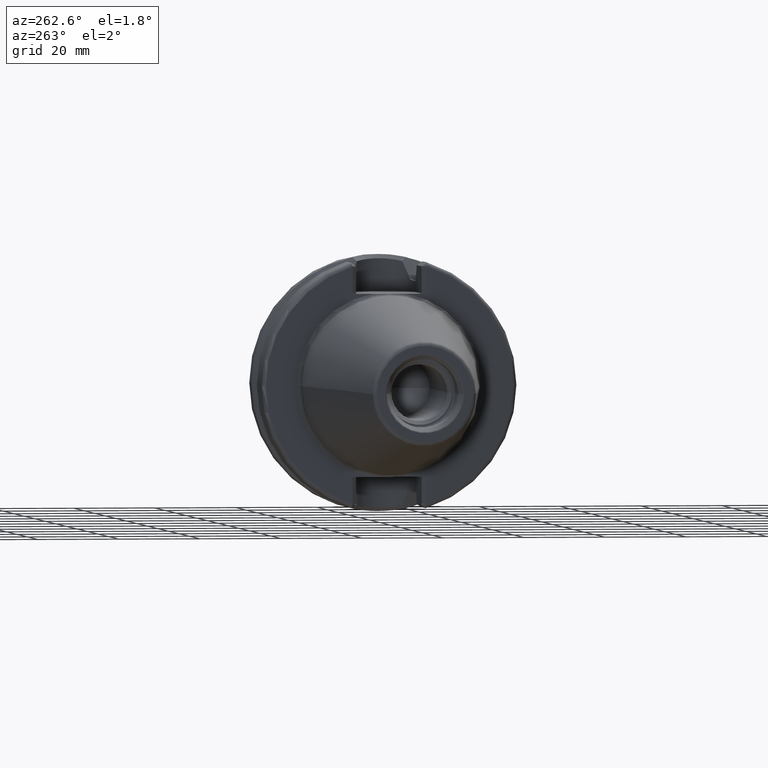
[diagram: clean part render]
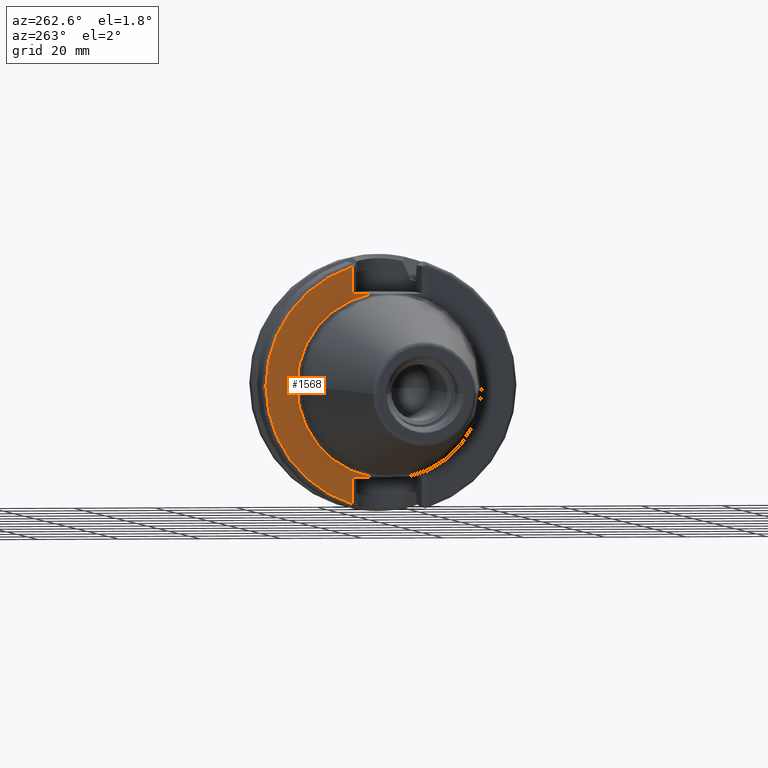
[diagram: same view with one face highlighted and labeled with its STEP entity id]
A machine part, auxiliary view. The second image highlights one B-rep face of the part: STEP entity #1568.
In plain terms, the highlighted planar face has unit normal (1, 0, 0).
Its self-contained STEP definition (entity closure, byte-faithful):
#96=CARTESIAN_POINT('',(2.E0,0.E0,0.E0));
#97=DIRECTION('',(-1.E0,0.E0,0.E0));
#98=DIRECTION('',(0.E0,1.E0,0.E0));
#99=AXIS2_PLACEMENT_3D('',#96,#97,#98);
#127=DIRECTION('',(2.137863157138E-6,2.138092596513E-6,9.999999999954E-1));
#128=VECTOR('',#127,6.649288203884E0);
#129=CARTESIAN_POINT('',(1.999985784732E0,9.094985783206E0,-2.909928820385E1));
#130=LINE('',#129,#128);
#131=DIRECTION('',(-4.462834027332E-6,-4.463945839096E-6,9.999999999801E-1));
#132=VECTOR('',#131,6.649296399125E0);
#133=CARTESIAN_POINT('',(2.E0,9.095E0,2.245E1));
#134=LINE('',#133,#132);
#592=CARTESIAN_POINT('',(2.E0,0.E0,0.E0));
#593=DIRECTION('',(-1.E0,0.E0,0.E0));
#594=DIRECTION('',(0.E0,2.983190614061E-1,9.544662055839E-1));
#595=AXIS2_PLACEMENT_3D('',#592,#593,#594);
#688=DIRECTION('',(0.E0,1.E0,0.E0));
#689=VECTOR('',#688,4.706022328605E0);
#690=CARTESIAN_POINT('',(2.E0,4.388977671395E0,2.245E1));
#691=LINE('',#690,#689);
#709=CARTESIAN_POINT('',(2.E0,0.E0,0.E0));
#710=DIRECTION('',(1.E0,0.E0,0.E0));
#711=DIRECTION('',(0.E0,1.E0,0.E0));
#712=AXIS2_PLACEMENT_3D('',#709,#710,#711);
#746=DIRECTION('',(0.E0,-1.E0,0.E0));
#747=VECTOR('',#746,4.706022328605E0);
#748=CARTESIAN_POINT('',(2.E0,9.095E0,-2.245E1));
#749=LINE('',#748,#747);
#1224=CARTESIAN_POINT('',(2.E0,2.2875E1,0.E0));
#1226=VERTEX_POINT('',#1224);
#1294=CARTESIAN_POINT('',(2.E0,4.388977671395E0,2.245E1));
#1295=VERTEX_POINT('',#1294);
#1302=CARTESIAN_POINT('',(2.E0,4.388977671395E0,-2.245E1));
#1303=VERTEX_POINT('',#1302);
#1340=CARTESIAN_POINT('',(2.E0,9.095027762300E0,2.909928051090E1));
#1342=VERTEX_POINT('',#1340);
#1344=CARTESIAN_POINT('',(2.E0,9.095E0,2.245E1));
#1345=VERTEX_POINT('',#1344);
#1354=CARTESIAN_POINT('',(1.999985784732E0,9.094985783206E0,-2.909928820385E1));
#1355=CARTESIAN_POINT('',(2.E0,9.095E0,-2.245E1));
#1356=VERTEX_POINT('',#1354);
#1357=VERTEX_POINT('',#1355);
#1548=CARTESIAN_POINT('',(2.E0,0.E0,0.E0));
#1549=DIRECTION('',(1.E0,0.E0,0.E0));
#1550=DIRECTION('',(0.E0,-1.E0,0.E0));
#1551=AXIS2_PLACEMENT_3D('',#1548,#1549,#1550);
#1552=PLANE('',#1551);
#1554=ORIENTED_EDGE('',*,*,#1553,.F.);
#1556=ORIENTED_EDGE('',*,*,#1555,.F.);
#1558=ORIENTED_EDGE('',*,*,#1557,.F.);
#1560=ORIENTED_EDGE('',*,*,#1559,.F.);
#1562=ORIENTED_EDGE('',*,*,#1561,.F.);
#1563=ORIENTED_EDGE('',*,*,#1534,.T.);
#1565=ORIENTED_EDGE('',*,*,#1564,.F.);
#1566=EDGE_LOOP('',(#1554,#1556,#1558,#1560,#1562,#1563,#1565));
#1567=FACE_OUTER_BOUND('',#1566,.F.);
#1568=ADVANCED_FACE('',(#1567),#1552,.F.);
#100=CIRCLE('',#99,2.2875E1);
#596=CIRCLE('',#595,3.04875E1);
#713=CIRCLE('',#712,2.2875E1);
#1534=EDGE_CURVE('',#1226,#1303,#100,.T.);
#1553=EDGE_CURVE('',#1356,#1357,#130,.T.);
#1555=EDGE_CURVE('',#1342,#1356,#596,.T.);
#1557=EDGE_CURVE('',#1345,#1342,#134,.T.);
#1559=EDGE_CURVE('',#1295,#1345,#691,.T.);
#1561=EDGE_CURVE('',#1226,#1295,#713,.T.);
#1564=EDGE_CURVE('',#1357,#1303,#749,.T.);